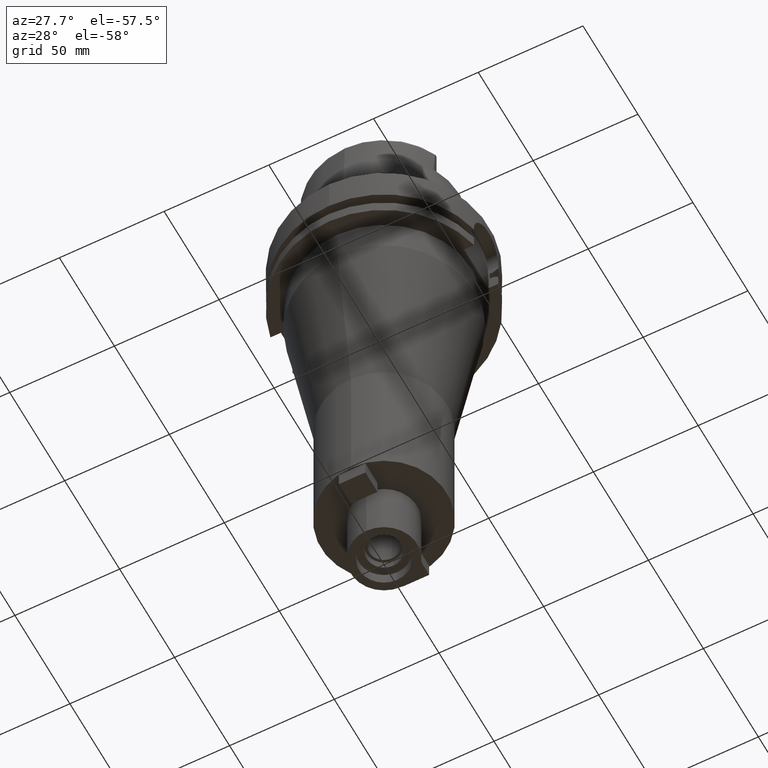
[diagram: clean part render]
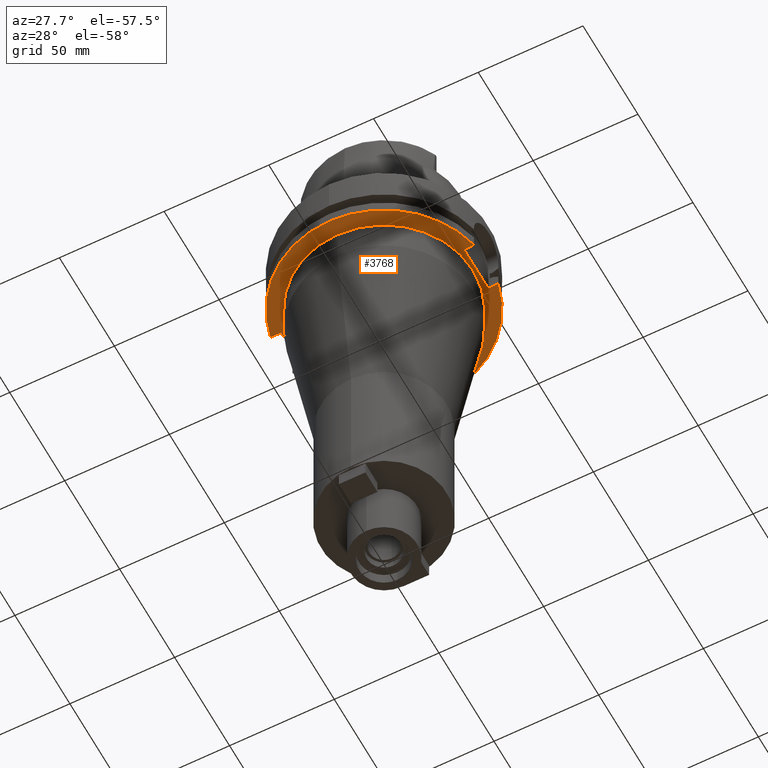
[diagram: same view with one face highlighted and labeled with its STEP entity id]
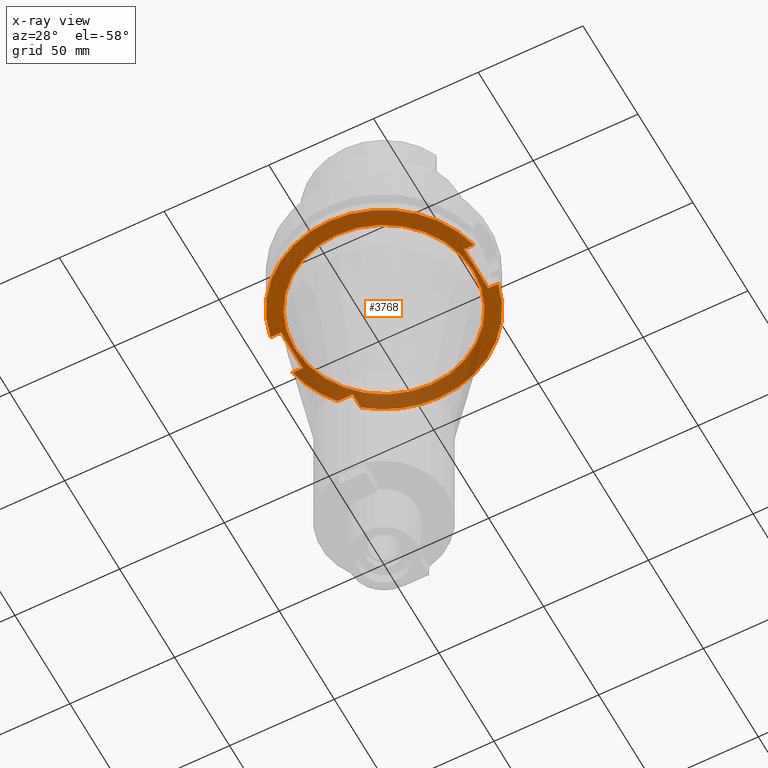
[diagram: x-ray of the same camera — body ghosted, the highlighted face saturated]
A machine part, auxiliary view. The second image highlights one B-rep face of the part: STEP entity #3768.
The next image is the same camera in x-ray: the body ghosted, the highlighted face saturated — about 35% of this face is hidden behind the body in this view.
In plain terms, the highlighted planar face has unit normal (0, 0, 1).
Its self-contained STEP definition (entity closure, byte-faithful):
#1263=DIRECTION('',(-1.E0,-4.798503851106E-14,0.E0));
#1264=VECTOR('',#1263,7.329756630709E0);
#1265=CARTESIAN_POINT('',(-3.15E1,3.15E1,-2.9E1));
#1266=LINE('',#1265,#1264);
#1270=CARTESIAN_POINT('',(0.E0,0.E0,-2.9E1));
#1271=DIRECTION('',(0.E0,0.E0,1.E0));
#1272=DIRECTION('',(-7.765951326142E-1,6.3E-1,0.E0));
#1273=AXIS2_PLACEMENT_3D('',#1270,#1271,#1272);
#1278=DIRECTION('',(-1.E0,-4.627973610177E-14,0.E0));
#1279=VECTOR('',#1278,4.989794855662E0);
#1280=CARTESIAN_POINT('',(-4.4E1,-1.E1,-2.9E1));
#1281=LINE('',#1280,#1279);
#1285=CARTESIAN_POINT('',(0.E0,0.E0,-2.9E1));
#1286=DIRECTION('',(0.E0,0.E0,1.E0));
#1287=DIRECTION('',(-9.797958971133E-1,-2.E-1,0.E0));
#1288=AXIS2_PLACEMENT_3D('',#1285,#1286,#1287);
#1293=CARTESIAN_POINT('',(0.E0,0.E0,-2.9E1));
#1294=DIRECTION('',(0.E0,0.E0,1.E0));
#1295=DIRECTION('',(0.E0,-1.E0,0.E0));
#1296=AXIS2_PLACEMENT_3D('',#1293,#1294,#1295);
#1301=DIRECTION('',(-1.E0,-1.711257052401E-14,0.E0));
#1302=VECTOR('',#1301,4.774993593029E0);
#1303=CARTESIAN_POINT('',(4.877499359303E1,-1.1E1,-2.9E1));
#1304=LINE('',#1303,#1302);
#1308=CARTESIAN_POINT('',(0.E0,0.E0,-2.9E1));
#1309=DIRECTION('',(0.E0,0.E0,1.E0));
#1310=DIRECTION('',(9.754998718606E-1,2.2E-1,0.E0));
#1311=AXIS2_PLACEMENT_3D('',#1308,#1309,#1310);
#1316=CARTESIAN_POINT('',(0.E0,0.E0,-2.9E1));
#1317=DIRECTION('',(0.E0,0.E0,1.E0));
#1318=DIRECTION('',(0.E0,1.E0,0.E0));
#1319=AXIS2_PLACEMENT_3D('',#1316,#1317,#1318);
#1324=CARTESIAN_POINT('',(0.E0,0.E0,-2.9E1));
#1325=DIRECTION('',(0.E0,0.E0,-1.E0));
#1326=DIRECTION('',(0.E0,-1.E0,0.E0));
#1327=AXIS2_PLACEMENT_3D('',#1324,#1325,#1326);
#1332=CARTESIAN_POINT('',(0.E0,0.E0,-2.9E1));
#1333=DIRECTION('',(0.E0,0.E0,-1.E0));
#1334=DIRECTION('',(0.E0,1.E0,0.E0));
#1335=AXIS2_PLACEMENT_3D('',#1332,#1333,#1334);
#1340=DIRECTION('',(4.798503851106E-14,1.E0,0.E0));
#1341=VECTOR('',#1340,7.329756630709E0);
#1342=CARTESIAN_POINT('',(-3.15E1,3.15E1,-2.9E1));
#1343=LINE('',#1342,#1341);
#1386=DIRECTION('',(-1.E0,1.785659532940E-14,0.E0));
#1387=VECTOR('',#1386,4.774993593029E0);
#1388=CARTESIAN_POINT('',(4.877499359303E1,1.1E1,-2.9E1));
#1389=LINE('',#1388,#1387);
#1400=DIRECTION('',(0.E0,-1.E0,0.E0));
#1401=VECTOR('',#1400,2.2E1);
#1402=CARTESIAN_POINT('',(4.4E1,1.1E1,-2.9E1));
#1403=LINE('',#1402,#1401);
#1479=DIRECTION('',(0.E0,1.E0,0.E0));
#1480=VECTOR('',#1479,2.E1);
#1481=CARTESIAN_POINT('',(-4.4E1,-1.E1,-2.9E1));
#1482=LINE('',#1481,#1480);
#1502=DIRECTION('',(-1.E0,4.627973610177E-14,0.E0));
#1503=VECTOR('',#1502,4.989794855662E0);
#1504=CARTESIAN_POINT('',(-4.4E1,1.E1,-2.9E1));
#1505=LINE('',#1504,#1503);
#2620=CARTESIAN_POINT('',(0.E0,4.25E1,-2.9E1));
#2621=VERTEX_POINT('',#2620);
#2622=CARTESIAN_POINT('',(0.E0,-4.25E1,-2.9E1));
#2623=VERTEX_POINT('',#2622);
#2624=CARTESIAN_POINT('',(-3.15E1,3.15E1,-2.9E1));
#2625=CARTESIAN_POINT('',(-3.15E1,3.882975663071E1,-2.9E1));
#2626=VERTEX_POINT('',#2624);
#2627=VERTEX_POINT('',#2625);
#2628=CARTESIAN_POINT('',(-3.882975663071E1,3.15E1,-2.9E1));
#2629=VERTEX_POINT('',#2628);
#2630=CARTESIAN_POINT('',(-4.898979485566E1,1.E1,-2.9E1));
#2631=VERTEX_POINT('',#2630);
#2632=CARTESIAN_POINT('',(-4.4E1,1.E1,-2.9E1));
#2633=VERTEX_POINT('',#2632);
#2634=CARTESIAN_POINT('',(-4.4E1,-1.E1,-2.9E1));
#2635=VERTEX_POINT('',#2634);
#2636=CARTESIAN_POINT('',(-4.898979485566E1,-1.E1,-2.9E1));
#2637=VERTEX_POINT('',#2636);
#2638=CARTESIAN_POINT('',(-6.821749291192E-14,-5.E1,-2.9E1));
#2639=CARTESIAN_POINT('',(4.877499359303E1,-1.1E1,-2.9E1));
#2640=VERTEX_POINT('',#2638);
#2641=VERTEX_POINT('',#2639);
#2642=CARTESIAN_POINT('',(4.4E1,-1.1E1,-2.9E1));
#2643=VERTEX_POINT('',#2642);
#2644=CARTESIAN_POINT('',(4.4E1,1.1E1,-2.9E1));
#2645=VERTEX_POINT('',#2644);
#2646=CARTESIAN_POINT('',(4.877499359303E1,1.1E1,-2.9E1));
#2647=VERTEX_POINT('',#2646);
#2648=CARTESIAN_POINT('',(-6.019535474874E-14,5.E1,-2.9E1));
#2649=VERTEX_POINT('',#2648);
#3731=CARTESIAN_POINT('',(0.E0,0.E0,-2.9E1));
#3732=DIRECTION('',(0.E0,0.E0,1.E0));
#3733=DIRECTION('',(0.E0,1.E0,0.E0));
#3734=AXIS2_PLACEMENT_3D('',#3731,#3732,#3733);
#3735=PLANE('',#3734);
#3737=ORIENTED_EDGE('',*,*,#3736,.F.);
#3739=ORIENTED_EDGE('',*,*,#3738,.T.);
#3741=ORIENTED_EDGE('',*,*,#3740,.T.);
#3743=ORIENTED_EDGE('',*,*,#3742,.F.);
#3745=ORIENTED_EDGE('',*,*,#3744,.F.);
#3747=ORIENTED_EDGE('',*,*,#3746,.T.);
#3749=ORIENTED_EDGE('',*,*,#3748,.T.);
#3751=ORIENTED_EDGE('',*,*,#3750,.T.);
#3753=ORIENTED_EDGE('',*,*,#3752,.T.);
#3755=ORIENTED_EDGE('',*,*,#3754,.F.);
#3757=ORIENTED_EDGE('',*,*,#3756,.F.);
#3759=ORIENTED_EDGE('',*,*,#3758,.T.);
#3761=ORIENTED_EDGE('',*,*,#3760,.T.);
#3762=EDGE_LOOP('',(#3737,#3739,#3741,#3743,#3745,#3747,#3749,#3751,#3753,#3755,
#3757,#3759,#3761));
#3763=FACE_OUTER_BOUND('',#3762,.F.);
#3764=ORIENTED_EDGE('',*,*,#3724,.T.);
#3765=ORIENTED_EDGE('',*,*,#3713,.T.);
#3766=EDGE_LOOP('',(#3764,#3765));
#3767=FACE_BOUND('',#3766,.F.);
#1274=CIRCLE('',#1273,5.E1);
#1289=CIRCLE('',#1288,5.E1);
#1297=CIRCLE('',#1296,5.E1);
#1312=CIRCLE('',#1311,5.E1);
#1320=CIRCLE('',#1319,5.E1);
#1328=CIRCLE('',#1327,4.25E1);
#1336=CIRCLE('',#1335,4.25E1);
#3713=EDGE_CURVE('',#2621,#2623,#1336,.T.);
#3724=EDGE_CURVE('',#2623,#2621,#1328,.T.);
#3736=EDGE_CURVE('',#2626,#2627,#1343,.T.);
#3738=EDGE_CURVE('',#2626,#2629,#1266,.T.);
#3740=EDGE_CURVE('',#2629,#2631,#1274,.T.);
#3742=EDGE_CURVE('',#2633,#2631,#1505,.T.);
#3744=EDGE_CURVE('',#2635,#2633,#1482,.T.);
#3746=EDGE_CURVE('',#2635,#2637,#1281,.T.);
#3748=EDGE_CURVE('',#2637,#2640,#1289,.T.);
#3750=EDGE_CURVE('',#2640,#2641,#1297,.T.);
#3752=EDGE_CURVE('',#2641,#2643,#1304,.T.);
#3754=EDGE_CURVE('',#2645,#2643,#1403,.T.);
#3756=EDGE_CURVE('',#2647,#2645,#1389,.T.);
#3758=EDGE_CURVE('',#2647,#2649,#1312,.T.);
#3760=EDGE_CURVE('',#2649,#2627,#1320,.T.);
#3768=ADVANCED_FACE('',(#3763,#3767),#3735,.F.);